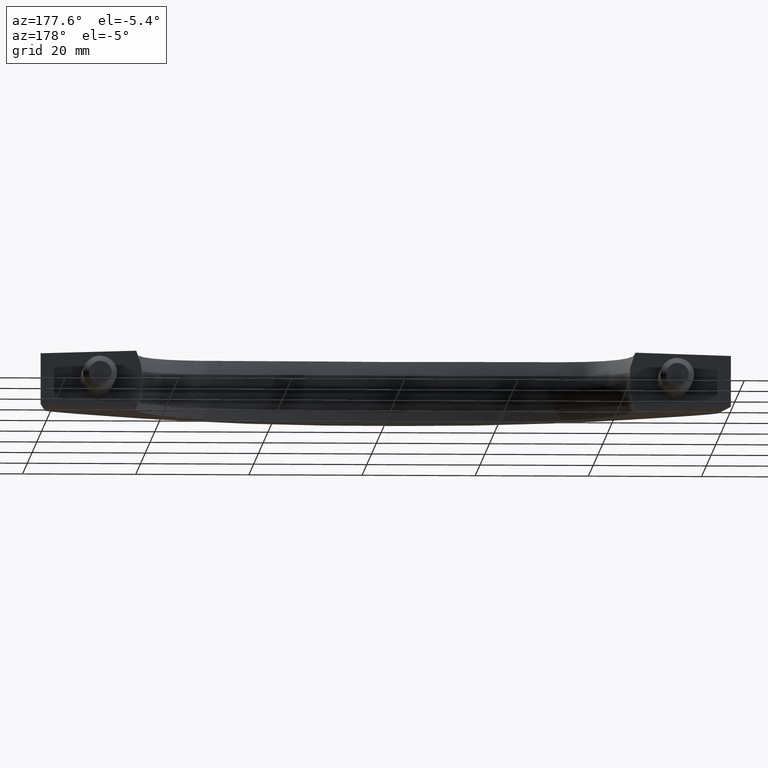
[diagram: clean part render]
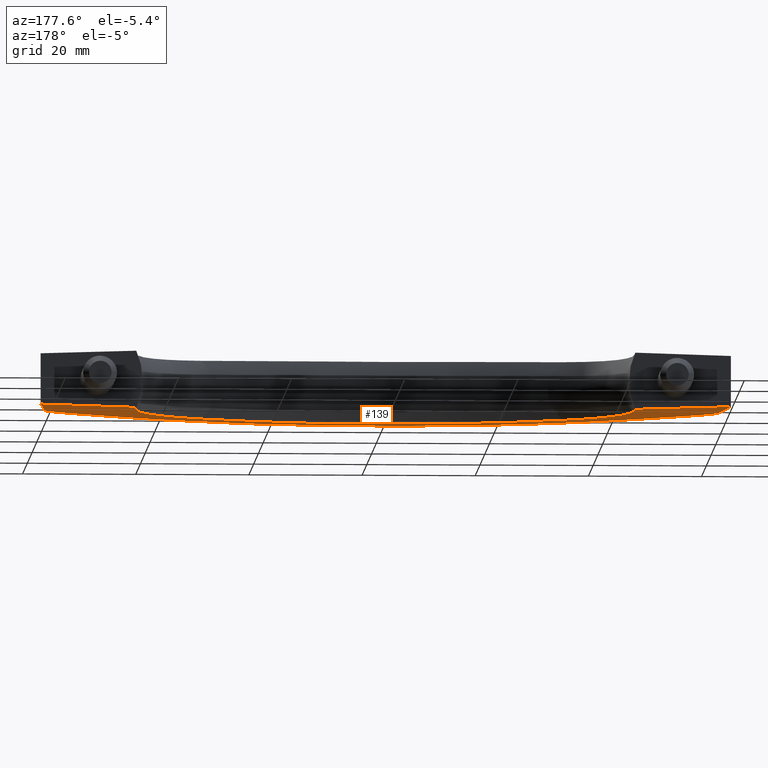
[diagram: same view with one face highlighted and labeled with its STEP entity id]
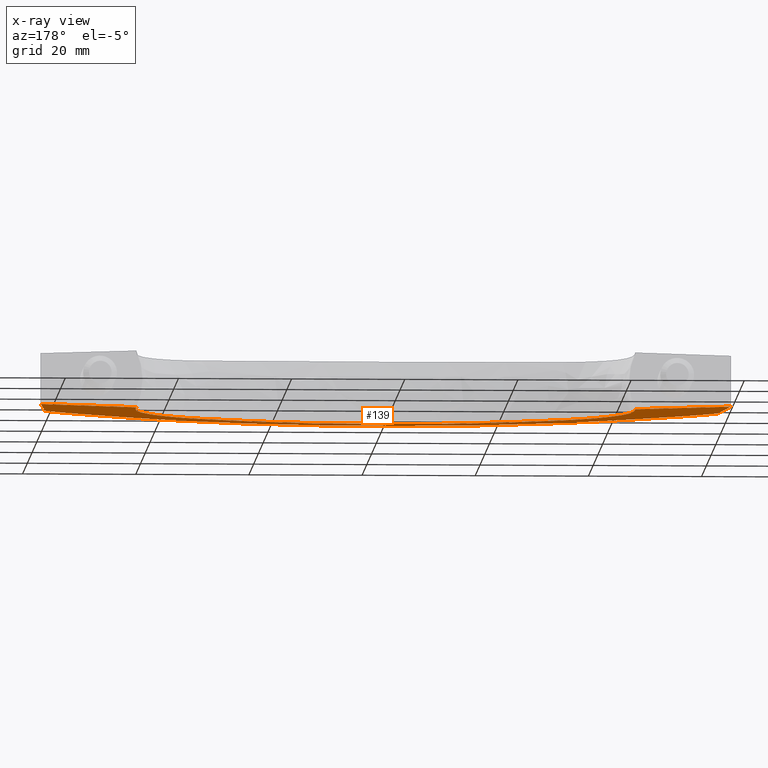
[diagram: x-ray of the same camera — body ghosted, the highlighted face saturated]
A machine part, auxiliary view. The second image highlights one B-rep face of the part: STEP entity #139.
The next image is the same camera in x-ray: the body ghosted, the highlighted face saturated — about 0% of this face is hidden behind the body in this view.
In plain terms, the highlighted face is a freeform B-spline surface patch.
Its self-contained STEP definition (entity closure, byte-faithful):
#139=ADVANCED_FACE('',(#328),#327,.F.);
#327=( BOUNDED_SURFACE() B_SPLINE_SURFACE( 3,3,((#1152,#1153,#1154,#1155,#1156,#1157,#1158,#1159,#1160,#1161,#1162,#1163,#1164,#1165,#1166),(#1167,#1168,#1169,#1170,#1171,#1172,#1173,#1174,#1175,#1176,#1177,#1178,#1179,#1180,#1181),(#1182,#1183,#1184,#1185,#1186,#1187,#1188,#1189,#1190,#1191,#1192,#1193,#1194,#1195,#1196),(#1197,#1198,#1199,#1200,#1201,#1202,#1203,#1204,#1205,#1206,#1207,#1208,#1209,#1210,#1211),(#1212,#1213,#1214,#1215,#1216,#1217,#1218,#1219,#1220,#1221,#1222,#1223,#1224,#1225,#1226),(#1227,#1228,#1229,#1230,#1231,#1232,#1233,#1234,#1235,#1236,#1237,#1238,#1239,#1240,#1241),(#1242,#1243,#1244,#1245,#1246,#1247,#1248,#1249,#1250,#1251,#1252,#1253,#1254,#1255,#1256)), .UNSPECIFIED.,.F.,.F.,.F.) B_SPLINE_SURFACE_WITH_KNOTS((4,3,4),(4,1,1,1,1,1,1,1,1,1,1,1,4),(0.00000000000E+00,3.55420467861E+01,7.12607061787E+01),(0.00000000000E+00,2.51424153408E+01,4.63131256070E+01,6.74838315494E+01,8.86545372176E+01,1.09825242588E+02,1.30995947939E+02,1.52166653289E+02,1.73337358660E+02,1.94508064328E+02,2.15678770270E+02,2.36849480537E+02,2.61239943865E+02), .UNSPECIFIED. ) GEOMETRIC_REPRESENTATION_ITEM() RATIONAL_B_SPLINE_SURFACE(((1.00000000000E+00,1.00000000000E+00,1.00000000000E+00,1.00000000000E+00,1.00000000000E+00,1.00000000000E+00,1.00000000000E+00,1.00000000000E+00,1.00000000000E+00,1.00000000000E+00,1.00000000000E+00,1.00000000000E+00,1.00000000000E+00,1.00000000000E+00,1.00000000000E+00),(1.00000000000E+00,1.00000000000E+00,1.00000000000E+00,1.00000000000E+00,1.00000000000E+00,1.00000000000E+00,1.00000000000E+00,1.00000000000E+00,1.00000000000E+00,1.00000000000E+00,1.00000000000E+00,1.00000000000E+00,1.00000000000E+00,1.00000000000E+00,1.00000000000E+00),(1.00000000000E+00,1.00000000000E+00,1.00000000000E+00,1.00000000000E+00,1.00000000000E+00,1.00000000000E+00,1.00000000000E+00,1.00000000000E+00,1.00000000000E+00,1.00000000000E+00,1.00000000000E+00,1.00000000000E+00,1.00000000000E+00,1.00000000000E+00,1.00000000000E+00),(1.00000000000E+00,1.00000000000E+00,1.00000000000E+00,1.00000000000E+00,1.00000000000E+00,1.00000000000E+00,1.00000000000E+00,1.00000000000E+00,1.00000000000E+00,1.00000000000E+00,1.00000000000E+00,1.00000000000E+00,1.00000000000E+00,1.00000000000E+00,1.00000000000E+00),(1.00000000000E+00,1.00000000000E+00,1.00000000000E+00,1.00000000000E+00,1.00000000000E+00,1.00000000000E+00,1.00000000000E+00,1.00000000000E+00,1.00000000000E+00,1.00000000000E+00,1.00000000000E+00,1.00000000000E+00,1.00000000000E+00,1.00000000000E+00,1.00000000000E+00),(1.00000000000E+00,1.00000000000E+00,1.00000000000E+00,1.00000000000E+00,1.00000000000E+00,1.00000000000E+00,1.00000000000E+00,1.00000000000E+00,1.00000000000E+00,1.00000000000E+00,1.00000000000E+00,1.00000000000E+00,1.00000000000E+00,1.00000000000E+00,1.00000000000E+00),(1.00000000000E+00,1.00000000000E+00,1.00000000000E+00,1.00000000000E+00,1.00000000000E+00,1.00000000000E+00,1.00000000000E+00,1.00000000000E+00,1.00000000000E+00,1.00000000000E+00,1.00000000000E+00,1.00000000000E+00,1.00000000000E+00,1.00000000000E+00,1.00000000000E+00))) REPRESENTATION_ITEM('') SURFACE() );
#328=FACE_OUTER_BOUND('',#1257,.T.);
#1152=CARTESIAN_POINT('',(5.95003000000E+01,-4.00000000000E+00,1.78820000000E+01));
#1153=CARTESIAN_POINT('',(5.65625769965E+01,-4.06855277191E+00,2.54700207546E+01));
#1154=CARTESIAN_POINT('',(5.11511981525E+01,-4.19482914963E+00,3.94473953843E+01));
#1155=CARTESIAN_POINT('',(3.98696410437E+01,-4.79709213560E+00,3.45701860510E+01));
#1156=CARTESIAN_POINT('',(3.00351092986E+01,-5.24923304528E+00,3.58002356217E+01));
#1157=CARTESIAN_POINT('',(1.99908227789E+01,-5.40597564257E+00,3.54702016607E+01));
#1158=CARTESIAN_POINT('',(1.00024999610E+01,-5.52686437916E+00,3.55602880352E+01));
#1159=CARTESIAN_POINT('',(7.74457295530E-05,-5.48656684013E+00,3.55299764922E+01));
#1160=CARTESIAN_POINT('',(-1.00019097439E+01,-5.52686826033E+00,3.55611362902E+01));
#1161=CARTESIAN_POINT('',(-1.99915385387E+01,-5.40596011789E+00,3.54668086407E+01));
#1162=CARTESIAN_POINT('',(-3.00310364764E+01,-5.24929126283E+00,3.58129594469E+01));
#1163=CARTESIAN_POINT('',(-3.98834165738E+01,-4.79687479006E+00,3.45226837655E+01));
#1164=CARTESIAN_POINT('',(-5.09692853106E+01,-4.20240328990E+00,3.95817310952E+01));
#1165=CARTESIAN_POINT('',(-5.65255437478E+01,-4.07057318795E+00,2.54481774162E+01));
#1166=CARTESIAN_POINT('',(-5.95000000000E+01,-4.00000000000E+00,1.78820000000E+01));
#1167=CARTESIAN_POINT('',(6.00003000000E+01,-4.16666666667E+00,1.19213333333E+01));
#1168=CARTESIAN_POINT('',(5.68477191492E+01,-4.23918204805E+00,1.69800138364E+01));
#1169=CARTESIAN_POINT('',(5.10405653435E+01,-4.37275767795E+00,2.62982635895E+01));
#1170=CARTESIAN_POINT('',(3.98971064990E+01,-4.94293975703E+00,2.30467907006E+01));
#1171=CARTESIAN_POINT('',(3.00277526048E+01,-5.21013987550E+00,2.38668237478E+01));
#1172=CARTESIAN_POINT('',(1.99927841016E+01,-5.41650071468E+00,2.36468011071E+01));
#1173=CARTESIAN_POINT('',(1.00020113637E+01,-5.52385725971E+00,2.37068586901E+01));
#1174=CARTESIAN_POINT('',(7.05121408400E-05,-5.48807024591E+00,2.36866509948E+01));
#1175=CARTESIAN_POINT('',(-1.00013934123E+01,-5.52386175668E+00,2.37074241935E+01));
#1176=CARTESIAN_POINT('',(-1.99935969317E+01,-5.41648272678E+00,2.36445390938E+01));
#1177=CARTESIAN_POINT('',(-3.00233192360E+01,-5.21020733013E+00,2.38753062979E+01));
#1178=CARTESIAN_POINT('',(-3.99122271455E+01,-4.94268792637E+00,2.30151225103E+01));
#1179=CARTESIAN_POINT('',(-5.08548486929E+01,-4.38011132664E+00,2.63878207302E+01));
#1180=CARTESIAN_POINT('',(-5.68113043897E+01,-4.24108971637E+00,1.69654516108E+01));
#1181=CARTESIAN_POINT('',(-6.00000000000E+01,-4.16666666667E+00,1.19213333333E+01));
#1182=CARTESIAN_POINT('',(6.05003000000E+01,-4.33333333333E+00,5.96066666667E+00));
#1183=CARTESIAN_POINT('',(5.71328613019E+01,-4.40981132419E+00,8.49000691818E+00));
#1184=CARTESIAN_POINT('',(5.09299325345E+01,-4.55068620628E+00,1.31491317948E+01));
#1185=CARTESIAN_POINT('',(3.99245719543E+01,-5.08878737846E+00,1.15233953503E+01));
#1186=CARTESIAN_POINT('',(3.00203959109E+01,-5.17104670571E+00,1.19334118739E+01));
#1187=CARTESIAN_POINT('',(1.99947454244E+01,-5.42702578679E+00,1.18234005536E+01));
#1188=CARTESIAN_POINT('',(1.00015227664E+01,-5.52085014025E+00,1.18534293451E+01));
#1189=CARTESIAN_POINT('',(6.35785521250E-05,-5.48957365168E+00,1.18433254974E+01));
#1190=CARTESIAN_POINT('',(-1.00008770807E+01,-5.52085525304E+00,1.18537120967E+01));
#1191=CARTESIAN_POINT('',(-1.99956553246E+01,-5.42700533567E+00,1.18222695469E+01));
#1192=CARTESIAN_POINT('',(-3.00156019955E+01,-5.17112339743E+00,1.19376531490E+01));
#1193=CARTESIAN_POINT('',(-3.99410377172E+01,-5.08850106267E+00,1.15075612552E+01));
#1194=CARTESIAN_POINT('',(-5.07404120751E+01,-4.55781936337E+00,1.31939103651E+01));
#1195=CARTESIAN_POINT('',(-5.70970650316E+01,-4.41160624479E+00,8.48272580542E+00));
#1196=CARTESIAN_POINT('',(-6.05000000000E+01,-4.33333333333E+00,5.96066666667E+00));
#1197=CARTESIAN_POINT('',(6.10003000000E+01,-4.50000000000E+00,-1.33226800000E-12));
#1198=CARTESIAN_POINT('',(5.74180034546E+01,-4.58044060032E+00,-7.63917700000E-13));
#1199=CARTESIAN_POINT('',(5.08192997255E+01,-4.72861473460E+00,2.83000900000E-13));
#1200=CARTESIAN_POINT('',(3.99520374096E+01,-5.23463499989E+00,-1.03208900000E-13));
#1201=CARTESIAN_POINT('',(3.00130392171E+01,-5.13195353593E+00,2.76645500000E-14));
#1202=CARTESIAN_POINT('',(1.99967067471E+01,-5.43755085890E+00,-7.44937300000E-15));
#1203=CARTESIAN_POINT('',(1.00010341692E+01,-5.51784302080E+00,2.13293900000E-15));
#1204=CARTESIAN_POINT('',(5.66449634110E-05,-5.49107705746E+00,-1.08238400000E-15));
#1205=CARTESIAN_POINT('',(-1.00003607490E+01,-5.51784874939E+00,2.19659700000E-15));
#1206=CARTESIAN_POINT('',(-1.99977137176E+01,-5.43752794455E+00,-7.70400300000E-15));
#1207=CARTESIAN_POINT('',(-3.00078847551E+01,-5.13203946473E+00,2.86194200000E-14));
#1208=CARTESIAN_POINT('',(-3.99698482889E+01,-5.23431419898E+00,-1.06773700000E-13));
#1209=CARTESIAN_POINT('',(-5.06259754574E+01,-4.73552740011E+00,2.92857100000E-13));
#1210=CARTESIAN_POINT('',(-5.73828256735E+01,-4.58212277322E+00,-7.65625500000E-13));
#1211=CARTESIAN_POINT('',(-6.10000000000E+01,-4.50000000000E+00,-1.33226800000E-12));
#1212=CARTESIAN_POINT('',(6.15027845587E+01,-4.66749485292E+00,-5.99028591968E+00));
#1213=CARTESIAN_POINT('',(5.77045625122E+01,-4.75191775338E+00,-8.53219476009E+00));
#1214=CARTESIAN_POINT('',(5.07081171691E+01,-4.90742741068E+00,-1.32144713756E+01));
#1215=CARTESIAN_POINT('',(3.99796393440E+01,-5.38120735528E+00,-1.15806564557E+01));
#1216=CARTESIAN_POINT('',(3.00056459670E+01,-5.09266610759E+00,-1.19927103996E+01));
#1217=CARTESIAN_POINT('',(1.99986778159E+01,-5.44812823133E+00,-1.18821524201E+01));
#1218=CARTESIAN_POINT('',(1.00005431440E+01,-5.51482095862E+00,-1.19123304282E+01));
#1219=CARTESIAN_POINT('',(4.96769208800E-05,-5.49258793383E+00,-1.19021763733E+01));
#1220=CARTESIAN_POINT('',(-9.99984185167E+00,-5.51482730607E+00,-1.19126145849E+01));
#1221=CARTESIAN_POINT('',(-1.99997823390E+01,-5.44810284152E+00,-1.18810157933E+01));
#1222=CARTESIAN_POINT('',(-3.00001291667E+01,-5.09276131938E+00,-1.19969727501E+01));
#1223=CARTESIAN_POINT('',(-3.99988020237E+01,-5.38085189789E+00,-1.15647436791E+01));
#1224=CARTESIAN_POINT('',(-5.05109701906E+01,-4.91411848896E+00,-1.32594724559E+01));
#1225=CARTESIAN_POINT('',(-5.76700062936E+01,-4.75348661831E+00,-8.52487746662E+00));
#1226=CARTESIAN_POINT('',(-6.15024845587E+01,-4.66749485292E+00,-5.99028591968E+00));
#1227=CARTESIAN_POINT('',(6.20052691175E+01,-4.83498970583E+00,-1.19805718394E+01));
#1228=CARTESIAN_POINT('',(5.79911215698E+01,-4.92339490644E+00,-1.70643895202E+01));
#1229=CARTESIAN_POINT('',(5.05969346127E+01,-5.08624008677E+00,-2.64289427512E+01));
#1230=CARTESIAN_POINT('',(4.00072412784E+01,-5.52777971068E+00,-2.31613129115E+01));
#1231=CARTESIAN_POINT('',(2.99982527169E+01,-5.05337867925E+00,-2.39854207992E+01));
#1232=CARTESIAN_POINT('',(2.00006488847E+01,-5.45870560376E+00,-2.37643048402E+01));
#1233=CARTESIAN_POINT('',(1.00000521188E+01,-5.51179889644E+00,-2.38246608564E+01));
#1234=CARTESIAN_POINT('',(4.27088783490E-05,-5.49409881020E+00,-2.38043527466E+01));
#1235=CARTESIAN_POINT('',(-9.99932295432E+00,-5.51180586276E+00,-2.38252291698E+01));
#1236=CARTESIAN_POINT('',(-2.00018509604E+01,-5.45867773848E+00,-2.37620315866E+01));
#1237=CARTESIAN_POINT('',(-2.99923735784E+01,-5.05348317403E+00,-2.39939455001E+01));
#1238=CARTESIAN_POINT('',(-4.00277557585E+01,-5.52738959680E+00,-2.31294873582E+01));
#1239=CARTESIAN_POINT('',(-5.03959649239E+01,-5.09270957781E+00,-2.65189449118E+01));
#1240=CARTESIAN_POINT('',(-5.79571869137E+01,-4.92485046339E+00,-1.70497549332E+01));
#1241=CARTESIAN_POINT('',(-6.20049691175E+01,-4.83498970583E+00,-1.19805718394E+01));
#1242=CARTESIAN_POINT('',(6.25077536762E+01,-5.00248455875E+00,-1.79708577590E+01));
#1243=CARTESIAN_POINT('',(5.82776806273E+01,-5.09487205950E+00,-2.55965842803E+01));
#1244=CARTESIAN_POINT('',(5.04857520562E+01,-5.26505276285E+00,-3.96434141268E+01));
#1245=CARTESIAN_POINT('',(4.00348432127E+01,-5.67435206608E+00,-3.47419693672E+01));
#1246=CARTESIAN_POINT('',(2.99908594668E+01,-5.01409125091E+00,-3.59781311988E+01));
#1247=CARTESIAN_POINT('',(2.00026199535E+01,-5.46928297618E+00,-3.56464572603E+01));
#1248=CARTESIAN_POINT('',(9.99956109362E+00,-5.50877683426E+00,-3.57369912846E+01));
#1249=CARTESIAN_POINT('',(3.57408358181E-05,-5.49560968658E+00,-3.57065291200E+01));
#1250=CARTESIAN_POINT('',(-9.99880405696E+00,-5.50878441944E+00,-3.57378437547E+01));
#1251=CARTESIAN_POINT('',(-2.00039195818E+01,-5.46925263545E+00,-3.56430473800E+01));
#1252=CARTESIAN_POINT('',(-2.99846179901E+01,-5.01420502868E+00,-3.59909182502E+01));
#1253=CARTESIAN_POINT('',(-4.00567094933E+01,-5.67392729572E+00,-3.46942310373E+01));
#1254=CARTESIAN_POINT('',(-5.02809596571E+01,-5.27130066666E+00,-3.97784173677E+01));
#1255=CARTESIAN_POINT('',(-5.82443675338E+01,-5.09621430848E+00,-2.55746323999E+01));
#1256=CARTESIAN_POINT('',(-6.25074536762E+01,-5.00248455875E+00,-1.79708577590E+01));
#1257=EDGE_LOOP('',(#1474,#1475,#1476,#1477,#1478,#1479,#1480,#1481,#1482,#1483));
#1474=ORIENTED_EDGE('',*,*,#1558,.F.);
#1475=ORIENTED_EDGE('',*,*,#1566,.T.);
#1476=ORIENTED_EDGE('',*,*,#1568,.T.);
#1477=ORIENTED_EDGE('',*,*,#1562,.T.);
#1478=ORIENTED_EDGE('',*,*,#1560,.F.);
#1479=ORIENTED_EDGE('',*,*,#1543,.F.);
#1480=ORIENTED_EDGE('',*,*,#1548,.F.);
#1481=ORIENTED_EDGE('',*,*,#1572,.F.);
#1482=ORIENTED_EDGE('',*,*,#1574,.T.);
#1483=ORIENTED_EDGE('',*,*,#1534,.F.);
#1534=EDGE_CURVE('',#1709,#1716,#1717,.T.);
#1543=EDGE_CURVE('',#1772,#1757,#1779,.T.);
#1548=EDGE_CURVE('',#1806,#1772,#1814,.T.);
#1558=EDGE_CURVE('',#1875,#1709,#1882,.T.);
#1560=EDGE_CURVE('',#1757,#1895,#1896,.T.);
#1562=EDGE_CURVE('',#1908,#1895,#1909,.T.);
#1566=EDGE_CURVE('',#1875,#1929,#1936,.T.);
#1568=EDGE_CURVE('',#1929,#1908,#1948,.T.);
#1572=EDGE_CURVE('',#1967,#1806,#1974,.T.);
#1574=EDGE_CURVE('',#1967,#1716,#1986,.T.);
#1709=VERTEX_POINT('',#2100);
#1716=VERTEX_POINT('',#2105);
#1717=(BOUNDED_CURVE() B_SPLINE_CURVE(3,(#2106,#2107,#2108,#2109,#2110),.UNSPECIFIED.,.F.,.F.) B_SPLINE_CURVE_WITH_KNOTS((4,1,4),(8.58626061439E-01,9.06635781007E-01,1.00000000000E+00),.UNSPECIFIED.) CURVE() GEOMETRIC_REPRESENTATION_ITEM() RATIONAL_B_SPLINE_CURVE((1.00000000000E+00,1.00000000000E+00,1.00000000000E+00,1.00000000000E+00,1.00000000000E+00)) REPRESENTATION_ITEM('') );
#1757=VERTEX_POINT('',#2135);
#1772=VERTEX_POINT('',#2147);
#1779=(BOUNDED_CURVE() B_SPLINE_CURVE(3,(#2151,#2152,#2153,#2154,#2155),.UNSPECIFIED.,.F.,.F.) B_SPLINE_CURVE_WITH_KNOTS((4,1,4),(0.00000000000E+00,9.62426150027E-02,1.44379920066E-01),.UNSPECIFIED.) CURVE() GEOMETRIC_REPRESENTATION_ITEM() RATIONAL_B_SPLINE_CURVE((1.00000000000E+00,1.00000000000E+00,1.00000000000E+00,1.00000000000E+00,1.00000000000E+00)) REPRESENTATION_ITEM('') );
#1806=VERTEX_POINT('',#2171);
#1814=LINE('',#2176,#2177);
#1875=VERTEX_POINT('',#2217);
#1882=(BOUNDED_CURVE() B_SPLINE_CURVE(3,(#2232,#2233,#2234,#2235),.UNSPECIFIED.,.F.,.F.) B_SPLINE_CURVE_WITH_KNOTS((4,4),(5.95697697824E-03,9.82039334998E-03),.UNSPECIFIED.) CURVE() GEOMETRIC_REPRESENTATION_ITEM() RATIONAL_B_SPLINE_CURVE((1.00000000000E+00,1.00000000000E+00,1.00000000000E+00,1.00000000000E+00)) REPRESENTATION_ITEM('') );
#1895=VERTEX_POINT('',#2241);
#1896=(BOUNDED_CURVE() B_SPLINE_CURVE(3,(#2242,#2243,#2244,#2245),.UNSPECIFIED.,.F.,.F.) B_SPLINE_CURVE_WITH_KNOTS((4,4),(0.00000000000E+00,3.60424723020E-03),.UNSPECIFIED.) CURVE() GEOMETRIC_REPRESENTATION_ITEM() RATIONAL_B_SPLINE_CURVE((1.00000000000E+00,1.00000000000E+00,1.00000000000E+00,1.00000000000E+00)) REPRESENTATION_ITEM('') );
#1908=VERTEX_POINT('',#2260);
#1909=(BOUNDED_CURVE() B_SPLINE_CURVE(3,(#2261,#2262,#2263,#2264,#2265,#2266,#2267,#2268,#2269,#2270,#2271,#2272,#2273,#2274,#2275,#2276,#2277,#2278,#2279,#2280,#2281,#2282,#2283,#2284,#2285,#2286,#2287,#2288,#2289,#2290,#2291,#2292),.UNSPECIFIED.,.F.,.F.) B_SPLINE_CURVE_WITH_KNOTS((4,2,2,2,2,2,2,2,2,2,2,2,2,2,2,4),(1.06117986830E-05,1.25000000000E-01,1.87500000000E-01,2.50000000000E-01,2.81250000000E-01,2.96875000000E-01,3.12500000000E-01,3.75000000000E-01,5.00000000000E-01,5.62500000000E-01,6.25000000000E-01,7.50000000000E-01,7.81250000000E-01,8.12500000000E-01,8.75000000000E-01,9.99994305616E-01),.UNSPECIFIED.) CURVE() GEOMETRIC_REPRESENTATION_ITEM() RATIONAL_B_SPLINE_CURVE((1.00000000000E+00,1.00000000000E+00,1.00000000000E+00,1.00000000000E+00,1.00000000000E+00,1.00000000000E+00,1.00000000000E+00,1.00000000000E+00,1.00000000000E+00,1.00000000000E+00,1.00000000000E+00,1.00000000000E+00,1.00000000000E+00,1.00000000000E+00,1.00000000000E+00,1.00000000000E+00,1.00000000000E+00,1.00000000000E+00,1.00000000000E+00,1.00000000000E+00,1.00000000000E+00,1.00000000000E+00,1.00000000000E+00,1.00000000000E+00,1.00000000000E+00,1.00000000000E+00,1.00000000000E+00,1.00000000000E+00,1.00000000000E+00,1.00000000000E+00,1.00000000000E+00,1.00000000000E+00)) REPRESENTATION_ITEM('') );
#1929=VERTEX_POINT('',#2341);
#1936=(BOUNDED_CURVE() B_SPLINE_CURVE(3,(#2353,#2354,#2355,#2356,#2357,#2358,#2359,#2360,#2361,#2362,#2363,#2364,#2365,#2366,#2367,#2368,#2369,#2370,#2371,#2372,#2373,#2374,#2375,#2376,#2377,#2378,#2379,#2380,#2381,#2382,#2383,#2384,#2385,#2386,#2387,#2388,#2389),.UNSPECIFIED.,.F.,.F.) B_SPLINE_CURVE_WITH_KNOTS((4,2,2,2,2,2,2,2,2,2,2,2,2,2,2,1,2,2,4),(3.01852788200E-05,1.25000000000E-01,1.87500000000E-01,2.50000000000E-01,2.81250000000E-01,2.96875000000E-01,3.12500000000E-01,3.75000000000E-01,5.00000000000E-01,5.15625000000E-01,5.31250000000E-01,5.62500000000E-01,6.25000000000E-01,7.50000000000E-01,7.65625000000E-01,7.81250000000E-01,8.12500000000E-01,8.75000000000E-01,9.99979244572E-01),.UNSPECIFIED.) CURVE() GEOMETRIC_REPRESENTATION_ITEM() RATIONAL_B_SPLINE_CURVE((1.00000000000E+00,1.00000000000E+00,1.00000000000E+00,1.00000000000E+00,1.00000000000E+00,1.00000000000E+00,1.00000000000E+00,1.00000000000E+00,1.00000000000E+00,1.00000000000E+00,1.00000000000E+00,1.00000000000E+00,1.00000000000E+00,1.00000000000E+00,1.00000000000E+00,1.00000000000E+00,1.00000000000E+00,1.00000000000E+00,1.00000000000E+00,1.00000000000E+00,1.00000000000E+00,1.00000000000E+00,1.00000000000E+00,1.00000000000E+00,1.00000000000E+00,1.00000000000E+00,1.00000000000E+00,1.00000000000E+00,1.00000000000E+00,1.00000000000E+00,1.00000000000E+00,1.00000000000E+00,1.00000000000E+00,1.00000000000E+00,1.00000000000E+00,1.00000000000E+00,1.00000000000E+00)) REPRESENTATION_ITEM('') );
#1948=(BOUNDED_CURVE() B_SPLINE_CURVE(3,(#2427,#2428,#2429,#2430,#2431,#2432,#2433,#2434,#2435,#2436,#2437,#2438,#2439,#2440,#2441,#2442,#2443,#2444,#2445,#2446,#2447,#2448,#2449,#2450,#2451,#2452,#2453,#2454,#2455,#2456,#2457,#2458,#2459,#2460,#2461,#2462,#2463,#2464,#2465,#2466,#2467,#2468,#2469,#2470,#2471,#2472),.UNSPECIFIED.,.F.,.F.) B_SPLINE_CURVE_WITH_KNOTS((4,2,2,2,2,2,2,2,2,2,2,2,2,2,2,2,2,2,2,2,2,2,4),(6.96180921600E-06,3.12500000000E-02,6.25000000000E-02,9.37500000000E-02,1.25000000000E-01,1.87500000000E-01,2.50000000000E-01,2.81250000000E-01,3.12500000000E-01,3.75000000000E-01,4.37500000000E-01,4.68750000000E-01,5.00000000000E-01,6.25000000000E-01,6.56250000000E-01,6.87500000000E-01,7.50000000000E-01,8.12500000000E-01,8.43750000000E-01,8.75000000000E-01,9.37500000000E-01,9.68750000000E-01,9.99996374207E-01),.UNSPECIFIED.) CURVE() GEOMETRIC_REPRESENTATION_ITEM() RATIONAL_B_SPLINE_CURVE((1.00000000000E+00,1.00000000000E+00,1.00000000000E+00,1.00000000000E+00,1.00000000000E+00,1.00000000000E+00,1.00000000000E+00,1.00000000000E+00,1.00000000000E+00,1.00000000000E+00,1.00000000000E+00,1.00000000000E+00,1.00000000000E+00,1.00000000000E+00,1.00000000000E+00,1.00000000000E+00,1.00000000000E+00,1.00000000000E+00,1.00000000000E+00,1.00000000000E+00,1.00000000000E+00,1.00000000000E+00,1.00000000000E+00,1.00000000000E+00,1.00000000000E+00,1.00000000000E+00,1.00000000000E+00,1.00000000000E+00,1.00000000000E+00,1.00000000000E+00,1.00000000000E+00,1.00000000000E+00,1.00000000000E+00,1.00000000000E+00,1.00000000000E+00,1.00000000000E+00,1.00000000000E+00,1.00000000000E+00,1.00000000000E+00,1.00000000000E+00,1.00000000000E+00,1.00000000000E+00,1.00000000000E+00,1.00000000000E+00,1.00000000000E+00,1.00000000000E+00)) REPRESENTATION_ITEM('') );
#1967=VERTEX_POINT('',#2609);
#1974=(BOUNDED_CURVE() B_SPLINE_CURVE(3,(#2613,#2614,#2615,#2616,#2617,#2618,#2619,#2620,#2621,#2622,#2623,#2624,#2625,#2626,#2627,#2628,#2629,#2630,#2631,#2632,#2633,#2634,#2635,#2636,#2637,#2638,#2639,#2640,#2641,#2642,#2643,#2644,#2645,#2646,#2647,#2648,#2649,#2650,#2651,#2652,#2653,#2654,#2655,#2656,#2657,#2658,#2659,#2660,#2661,#2662,#2663,#2664,#2665,#2666,#2667,#2668,#2669,#2670,#2671,#2672,#2673,#2674,#2675,#2676,#2677,#2678,#2679,#2680,#2681,#2682,#2683,#2684,#2685,#2686,#2687,#2688,#2689,#2690,#2691,#2692,#2693,#2694,#2695,#2696,#2697,#2698,#2699,#2700),.UNSPECIFIED.,.F.,.F.) B_SPLINE_CURVE_WITH_KNOTS((4,2,2,2,2,2,2,2,2,2,2,2,2,2,2,2,2,2,2,2,2,2,2,2,2,2,2,2,2,2,2,2,2,2,2,2,2,2,2,2,2,2,2,4),(0.00000000000E+00,7.81250000000E-03,1.56250000000E-02,3.12500000000E-02,4.68750000000E-02,6.25000000000E-02,7.81250000000E-02,9.37500000000E-02,1.25000000000E-01,1.56250000000E-01,1.87500000000E-01,2.18750000000E-01,2.34375000000E-01,2.50000000000E-01,2.81250000000E-01,3.12500000000E-01,3.43750000000E-01,3.75000000000E-01,3.90625000000E-01,4.06250000000E-01,4.37500000000E-01,5.00000000000E-01,5.15625000000E-01,5.31250000000E-01,5.62500000000E-01,5.93750000000E-01,6.25000000000E-01,6.56250000000E-01,6.71875000000E-01,6.87500000000E-01,7.18750000000E-01,7.50000000000E-01,7.81250000000E-01,8.12500000000E-01,8.43750000000E-01,8.75000000000E-01,9.06250000000E-01,9.21875000000E-01,9.37500000000E-01,9.53125000000E-01,9.68750000000E-01,9.84375000000E-01,9.92187500000E-01,1.00000000000E+00),.UNSPECIFIED.) CURVE() GEOMETRIC_REPRESENTATION_ITEM() RATIONAL_B_SPLINE_CURVE((1.00000000000E+00,1.00000000000E+00,1.00000000000E+00,1.00000000000E+00,1.00000000000E+00,1.00000000000E+00,1.00000000000E+00,1.00000000000E+00,1.00000000000E+00,1.00000000000E+00,1.00000000000E+00,1.00000000000E+00,1.00000000000E+00,1.00000000000E+00,1.00000000000E+00,1.00000000000E+00,1.00000000000E+00,1.00000000000E+00,1.00000000000E+00,1.00000000000E+00,1.00000000000E+00,1.00000000000E+00,1.00000000000E+00,1.00000000000E+00,1.00000000000E+00,1.00000000000E+00,1.00000000000E+00,1.00000000000E+00,1.00000000000E+00,1.00000000000E+00,1.00000000000E+00,1.00000000000E+00,1.00000000000E+00,1.00000000000E+00,1.00000000000E+00,1.00000000000E+00,1.00000000000E+00,1.00000000000E+00,1.00000000000E+00,1.00000000000E+00,1.00000000000E+00,1.00000000000E+00,1.00000000000E+00,1.00000000000E+00,1.00000000000E+00,1.00000000000E+00,1.00000000000E+00,1.00000000000E+00,1.00000000000E+00,1.00000000000E+00,1.00000000000E+00,1.00000000000E+00,1.00000000000E+00,1.00000000000E+00,1.00000000000E+00,1.00000000000E+00,1.00000000000E+00,1.00000000000E+00,1.00000000000E+00,1.00000000000E+00,1.00000000000E+00,1.00000000000E+00,1.00000000000E+00,1.00000000000E+00,1.00000000000E+00,1.00000000000E+00,1.00000000000E+00,1.00000000000E+00,1.00000000000E+00,1.00000000000E+00,1.00000000000E+00,1.00000000000E+00,1.00000000000E+00,1.00000000000E+00,1.00000000000E+00,1.00000000000E+00,1.00000000000E+00,1.00000000000E+00,1.00000000000E+00,1.00000000000E+00,1.00000000000E+00,1.00000000000E+00,1.00000000000E+00,1.00000000000E+00,1.00000000000E+00,1.00000000000E+00,1.00000000000E+00,1.00000000000E+00)) REPRESENTATION_ITEM('') );
#1986=LINE('',#2704,#2705);
#2100=CARTESIAN_POINT('',(-4.41021223006E+01,-5.02357060759E+00,4.66572800000E-14));
#2105=CARTESIAN_POINT('',(-6.10000000000E+01,-4.50000000000E+00,-6.66133800000E-13));
#2106=CARTESIAN_POINT('',(-4.41021223006E+01,-5.02357060759E+00,4.66572800000E-14));
#2107=CARTESIAN_POINT('',(-4.60876513746E+01,-4.95379661569E+00,7.56054800000E-14));
#2108=CARTESIAN_POINT('',(-5.19056290930E+01,-4.70647469326E+00,9.23951600000E-14));
#2109=CARTESIAN_POINT('',(-5.73828256735E+01,-4.58212277322E+00,-7.65625500000E-13));
#2110=CARTESIAN_POINT('',(-6.10000000000E+01,-4.50000000000E+00,-6.66133800000E-13));
#2135=CARTESIAN_POINT('',(4.41025482976E+01,-5.02384393001E+00,0.00000000000E+00));
#2147=CARTESIAN_POINT('',(6.10003000000E+01,-4.50000000000E+00,-1.55431200000E-12));
#2151=CARTESIAN_POINT('',(6.10003000000E+01,-4.50000000000E+00,-1.55431200000E-12));
#2152=CARTESIAN_POINT('',(5.74180034546E+01,-4.58044060032E+00,-7.63917700000E-13));
#2153=CARTESIAN_POINT('',(5.20439631829E+01,-4.70111487174E+00,8.87016800000E-14));
#2154=CARTESIAN_POINT('',(4.60999607939E+01,-4.95384435328E+00,7.11433200000E-14));
#2155=CARTESIAN_POINT('',(4.41025482976E+01,-5.02384393001E+00,0.00000000000E+00));
#2171=CARTESIAN_POINT('',(5.95003111203E+01,-4.00000370677E+00,1.78818674312E+01));
#2176=CARTESIAN_POINT('',(5.95003111203E+01,-4.00000370677E+00,1.78818674312E+01));
#2177=VECTOR('',#2178,1.79516335123E+01);
#2178=DIRECTION('',(8.35572360963E-02,-2.78524120321E-02,-9.96113663916E-01));
#2217=CARTESIAN_POINT('',(-4.40801236221E+01,-4.97619864605E+00,3.86306332132E+00));
#2232=CARTESIAN_POINT('',(-4.40801236221E+01,-4.97619864605E+00,3.86306332132E+00));
#2233=CARTESIAN_POINT('',(-4.40874095642E+01,-4.99197726250E+00,2.57537513687E+00));
#2234=CARTESIAN_POINT('',(-4.40947422916E+01,-5.00776787398E+00,1.28768735982E+00));
#2235=CARTESIAN_POINT('',(-4.41021223006E+01,-5.02357060759E+00,4.66572800000E-14));
#2241=CARTESIAN_POINT('',(4.40828798636E+01,-4.97957964730E+00,3.60392178003E+00));
#2242=CARTESIAN_POINT('',(4.41025482976E+01,-5.02384393001E+00,0.00000000000E+00));
#2243=CARTESIAN_POINT('',(4.40959510913E+01,-5.00907868703E+00,1.20130689944E+00));
#2244=CARTESIAN_POINT('',(4.40893950812E+01,-4.99432396080E+00,2.40261416213E+00));
#2245=CARTESIAN_POINT('',(4.40828798636E+01,-4.97957964730E+00,3.60392178003E+00));
#2260=CARTESIAN_POINT('',(3.18020170094E+01,-5.16083454318E+00,1.99193198759E+01));
#2261=CARTESIAN_POINT('',(3.18020170094E+01,-5.16083454318E+00,1.99193198759E+01));
#2262=CARTESIAN_POINT('',(3.26915398517E+01,-5.14156330363E+00,1.96672965895E+01));
#2263=CARTESIAN_POINT('',(3.35520614795E+01,-5.12293646080E+00,1.93547235592E+01));
#2264=CARTESIAN_POINT('',(3.47987234801E+01,-5.09599430699E+00,1.87936574887E+01));
#2265=CARTESIAN_POINT('',(3.52069027755E+01,-5.08718545415E+00,1.85911782499E+01));
#2266=CARTESIAN_POINT('',(3.60078646441E+01,-5.06996516766E+00,1.81540714766E+01));
#2267=CARTESIAN_POINT('',(3.64006503592E+01,-5.06155400568E+00,1.79194504866E+01));
#2268=CARTESIAN_POINT('',(3.69775405328E+01,-5.04928556698E+00,1.75418594750E+01));
#2269=CARTESIAN_POINT('',(3.71677857395E+01,-5.04525422095E+00,1.74117120107E+01));
#2270=CARTESIAN_POINT('',(3.74499515099E+01,-5.03930122941E+00,1.72098044571E+01));
#2271=CARTESIAN_POINT('',(3.75434290906E+01,-5.03733351280E+00,1.71414134544E+01));
#2272=CARTESIAN_POINT('',(3.77283190001E+01,-5.03345098509E+00,1.70031062487E+01));
#2273=CARTESIAN_POINT('',(3.78198538488E+01,-5.03153358617E+00,1.69331033152E+01));
#2274=CARTESIAN_POINT('',(3.82729828667E+01,-5.02206687791E+00,1.65788469240E+01));
#2275=CARTESIAN_POINT('',(3.86209549542E+01,-5.01487828233E+00,1.62818809802E+01));
#2276=CARTESIAN_POINT('',(3.96211284408E+01,-4.99450607339E+00,1.53501605905E+01));
#2277=CARTESIAN_POINT('',(4.02296396162E+01,-4.98242240060E+00,1.46746343157E+01));
#2278=CARTESIAN_POINT('',(4.10522635485E+01,-4.96729165965E+00,1.35772101241E+01));
#2279=CARTESIAN_POINT('',(4.13114349958E+01,-4.96277321347E+00,1.31973672526E+01));
#2280=CARTESIAN_POINT('',(4.17989386128E+01,-4.95498121749E+00,1.24088936533E+01));
#2281=CARTESIAN_POINT('',(4.20233392378E+01,-4.95177083519E+00,1.20066424550E+01));
#2282=CARTESIAN_POINT('',(4.26419394880E+01,-4.94424947409E+00,1.07773146633E+01));
#2283=CARTESIAN_POINT('',(4.29818645545E+01,-4.94204973482E+00,9.92778068595E+00));
#2284=CARTESIAN_POINT('',(4.33231726877E+01,-4.94286981170E+00,8.83127866528E+00));
#2285=CARTESIAN_POINT('',(4.33872281546E+01,-4.94321215606E+00,8.61023817789E+00));
#2286=CARTESIAN_POINT('',(4.35069906553E+01,-4.94425488857E+00,8.16470345442E+00));
#2287=CARTESIAN_POINT('',(4.35627794847E+01,-4.94495704642E+00,7.93982022485E+00));
#2288=CARTESIAN_POINT('',(4.37168089435E+01,-4.94758665993E+00,7.26387590562E+00));
#2289=CARTESIAN_POINT('',(4.38019242787E+01,-4.95003488582E+00,6.81112265717E+00));
#2290=CARTESIAN_POINT('',(4.40070833245E+01,-4.95936958149E+00,5.44683932992E+00));
#2291=CARTESIAN_POINT('',(4.40773070102E+01,-4.96824173419E+00,4.52928790744E+00));
#2292=CARTESIAN_POINT('',(4.40828798636E+01,-4.97957964730E+00,3.60392178003E+00));
#2341=CARTESIAN_POINT('',(-3.21040640127E+01,-5.15428794884E+00,1.98327453923E+01));
#2353=CARTESIAN_POINT('',(-4.40801236221E+01,-4.97619864605E+00,3.86306332132E+00));
#2354=CARTESIAN_POINT('',(-4.40748465318E+01,-4.96512932021E+00,4.76693846402E+00));
#2355=CARTESIAN_POINT('',(-4.40094139389E+01,-4.95639843592E+00,5.66076322128E+00));
#2356=CARTESIAN_POINT('',(-4.38182784741E+01,-4.94706932812E+00,6.98607498668E+00));
#2357=CARTESIAN_POINT('',(-4.37389597924E+01,-4.94458908630E+00,7.42531107452E+00));
#2358=CARTESIAN_POINT('',(-4.35475056555E+01,-4.94095228348E+00,8.29830073489E+00));
#2359=CARTESIAN_POINT('',(-4.34353737440E+01,-4.93979577739E+00,8.73205490067E+00));
#2360=CARTESIAN_POINT('',(-4.32407059763E+01,-4.93911122174E+00,9.37826386324E+00));
#2361=CARTESIAN_POINT('',(-4.31713980502E+01,-4.93905816553E+00,9.59292862910E+00));
#2362=CARTESIAN_POINT('',(-4.30605067577E+01,-4.93924920380E+00,9.91376806651E+00));
#2363=CARTESIAN_POINT('',(-4.30224236330E+01,-4.93935802955E+00,1.00204089087E+01));
#2364=CARTESIAN_POINT('',(-4.29442616478E+01,-4.93966509133E+00,1.02323468022E+01));
#2365=CARTESIAN_POINT('',(-4.29041466126E+01,-4.93986337726E+00,1.03377495506E+01));
#2366=CARTESIAN_POINT('',(-4.26983796658E+01,-4.94107719156E+00,1.08619205152E+01));
#2367=CARTESIAN_POINT('',(-4.25171688314E+01,-4.94276042838E+00,1.12721693623E+01));
#2368=CARTESIAN_POINT('',(-4.19225072050E+01,-4.94988208376E+00,1.24749755320E+01));
#2369=CARTESIAN_POINT('',(-4.14581911807E+01,-4.95741210382E+00,1.32396820209E+01));
#2370=CARTESIAN_POINT('',(-4.08532710386E+01,-4.96864498456E+00,1.40547740311E+01));
#2371=CARTESIAN_POINT('',(-4.07849074509E+01,-4.96993101816E+00,1.41447100771E+01));
#2372=CARTESIAN_POINT('',(-4.06458521518E+01,-4.97257683439E+00,1.43233075900E+01));
#2373=CARTESIAN_POINT('',(-4.05751107903E+01,-4.97393761568E+00,1.44120244257E+01));
#2374=CARTESIAN_POINT('',(-4.03604933691E+01,-4.97810460500E+00,1.46748725616E+01));
#2375=CARTESIAN_POINT('',(-4.02138887845E+01,-4.98100185609E+00,1.48461459134E+01));
#2376=CARTESIAN_POINT('',(-3.97637232476E+01,-4.99000024132E+00,1.53483457455E+01));
#2377=CARTESIAN_POINT('',(-3.94498148717E+01,-4.99640012351E+00,1.56676570771E+01));
#2378=CARTESIAN_POINT('',(-3.84683840564E+01,-5.01670265160E+00,1.65810218139E+01));
#2379=CARTESIAN_POINT('',(-3.77613289771E+01,-5.03171014327E+00,1.71307000477E+01));
#2380=CARTESIAN_POINT('',(-3.69095811443E+01,-5.05002549710E+00,1.76858827226E+01));
#2381=CARTESIAN_POINT('',(-3.68140534919E+01,-5.05208267559E+00,1.77467512870E+01));
#2382=CARTESIAN_POINT('',(-3.66220449643E+01,-5.05622285095E+00,1.78663509331E+01));
#2383=CARTESIAN_POINT('',(-3.63326144277E+01,-5.06247155903E+00,1.80425474052E+01));
#2384=CARTESIAN_POINT('',(-3.60390206033E+01,-5.06883015429E+00,1.82093382460E+01));
#2385=CARTESIAN_POINT('',(-3.54464865047E+01,-5.08168035939E+00,1.85308417128E+01));
#2386=CARTESIAN_POINT('',(-3.50443458386E+01,-5.09042387258E+00,1.87290971849E+01));
#2387=CARTESIAN_POINT('',(-3.38179276644E+01,-5.11709175455E+00,1.92783254889E+01));
#2388=CARTESIAN_POINT('',(-3.29736773116E+01,-5.13543393384E+00,1.95841813557E+01));
#2389=CARTESIAN_POINT('',(-3.21040640127E+01,-5.15428794884E+00,1.98327453923E+01));
#2427=CARTESIAN_POINT('',(-3.21040640127E+01,-5.15428794884E+00,1.98327453923E+01));
#2428=CARTESIAN_POINT('',(-3.14559066817E+01,-5.16834127272E+00,2.00177901781E+01));
#2429=CARTESIAN_POINT('',(-3.08061742781E+01,-5.18237440103E+00,2.01974598486E+01));
#2430=CARTESIAN_POINT('',(-2.95034815213E+01,-5.21084561628E+00,2.05462833118E+01));
#2431=CARTESIAN_POINT('',(-2.88505252582E+01,-5.22531266339E+00,2.07154488200E+01));
#2432=CARTESIAN_POINT('',(-2.75414423399E+01,-5.25412272120E+00,2.10429669790E+01));
#2433=CARTESIAN_POINT('',(-2.68851374771E+01,-5.26846599192E+00,2.12013574856E+01));
#2434=CARTESIAN_POINT('',(-2.55705733624E+01,-5.29650204426E+00,2.15067661025E+01));
#2435=CARTESIAN_POINT('',(-2.49122335606E+01,-5.31019659524E+00,2.16538075843E+01));
#2436=CARTESIAN_POINT('',(-2.29339845690E+01,-5.34975670557E+00,2.20776901826E+01));
#2437=CARTESIAN_POINT('',(-2.16108412158E+01,-5.37404621931E+00,2.23372695567E+01));
#2438=CARTESIAN_POINT('',(-1.89557493984E+01,-5.41689328629E+00,2.28095626418E+01));
#2439=CARTESIAN_POINT('',(-1.76238089606E+01,-5.43552811372E+00,2.30223125759E+01));
#2440=CARTESIAN_POINT('',(-1.56192323063E+01,-5.45892636394E+00,2.33059767069E+01));
#2441=CARTESIAN_POINT('',(-1.49497531857E+01,-5.46596322287E+00,2.33946366647E+01));
#2442=CARTESIAN_POINT('',(-1.36101337630E+01,-5.47838442977E+00,2.35598446491E+01));
#2443=CARTESIAN_POINT('',(-1.29398491422E+01,-5.48377060772E+00,2.36364161302E+01));
#2444=CARTESIAN_POINT('',(-1.09275637632E+01,-5.49726861493E+00,2.38479542725E+01));
#2445=CARTESIAN_POINT('',(-9.58411844374E+00,-5.50241404146E+00,2.39645909746E+01));
#2446=CARTESIAN_POINT('',(-6.89343555807E+00,-5.50617909451E+00,2.41496911315E+01));
#2447=CARTESIAN_POINT('',(-5.54621513634E+00,-5.50519028736E+00,2.42183569821E+01));
#2448=CARTESIAN_POINT('',(-3.52271246524E+00,-5.50292723727E+00,2.42872502872E+01));
#2449=CARTESIAN_POINT('',(-2.84764940060E+00,-5.50204402532E+00,2.43045293169E+01));
#2450=CARTESIAN_POINT('',(-1.49809846260E+00,-5.50062004242E+00,2.43279823653E+01));
#2451=CARTESIAN_POINT('',(-8.23448496612E-01,-5.50007919845E+00,2.43341639486E+01));
#2452=CARTESIAN_POINT('',(2.54919211551E+00,-5.49972390541E+00,2.43381603373E+01));
#2453=CARTESIAN_POINT('',(5.24536486862E+00,-5.50760868137E+00,2.42556738810E+01));
#2454=CARTESIAN_POINT('',(8.61287568208E+00,-5.50393198964E+00,2.40329944506E+01));
#2455=CARTESIAN_POINT('',(9.28632324774E+00,-5.50252049072E+00,2.39824633783E+01));
#2456=CARTESIAN_POINT('',(1.06312500714E+01,-5.49777361471E+00,2.38692619394E+01));
#2457=CARTESIAN_POINT('',(1.13029299184E+01,-5.49443222687E+00,2.38065771643E+01));
#2458=CARTESIAN_POINT('',(1.33156403310E+01,-5.48172204508E+00,2.36004237174E+01));
#2459=CARTESIAN_POINT('',(1.46543432353E+01,-5.46967920981E+00,2.34388665481E+01));
#2460=CARTESIAN_POINT('',(1.73256285424E+01,-5.43942566634E+00,2.30681240901E+01));
#2461=CARTESIAN_POINT('',(1.86582115824E+01,-5.42122358025E+00,2.28589431575E+01));
#2462=CARTESIAN_POINT('',(2.06525224259E+01,-5.38968289004E+00,2.25096308868E+01));
#2463=CARTESIAN_POINT('',(2.13165448019E+01,-5.37845174415E+00,2.23872550494E+01));
#2464=CARTESIAN_POINT('',(2.26410411803E+01,-5.35472177947E+00,2.21311075775E+01));
#2465=CARTESIAN_POINT('',(2.33017721285E+01,-5.34221840846E+00,2.19972923484E+01));
#2466=CARTESIAN_POINT('',(2.52794840475E+01,-5.30314695225E+00,2.15788635192E+01));
#2467=CARTESIAN_POINT('',(2.65919777268E+01,-5.27495680205E+00,2.12772474490E+01));
#2468=CARTESIAN_POINT('',(2.85521449067E+01,-5.23191918493E+00,2.07921463118E+01));
#2469=CARTESIAN_POINT('',(2.92041066961E+01,-5.21746303933E+00,2.06250047040E+01));
#2470=CARTESIAN_POINT('',(3.05051840547E+01,-5.18891675913E+00,2.02801311016E+01));
#2471=CARTESIAN_POINT('',(3.11543054971E+01,-5.17486725247E+00,2.01024182039E+01));
#2472=CARTESIAN_POINT('',(3.18020170094E+01,-5.16083454318E+00,1.99193198759E+01));
#2609=CARTESIAN_POINT('',(-5.95000020396E+01,-4.00000067987E+00,1.78819756852E+01));
#2613=CARTESIAN_POINT('',(-5.95000020396E+01,-4.00000067987E+00,1.78819756852E+01));
#2614=CARTESIAN_POINT('',(-5.92029516510E+01,-4.03185766457E+00,1.79860158006E+01));
#2615=CARTESIAN_POINT('',(-5.89053025305E+01,-4.05807386481E+00,1.80893905764E+01));
#2616=CARTESIAN_POINT('',(-5.83091622335E+01,-4.10524769573E+00,1.82946775936E+01));
#2617=CARTESIAN_POINT('',(-5.80106620605E+01,-4.12605301133E+00,1.83965931438E+01));
#2618=CARTESIAN_POINT('',(-5.71140835622E+01,-4.18372064196E+00,1.87000768047E+01));
#2619=CARTESIAN_POINT('',(-5.65149342316E+01,-4.21595298843E+00,1.88993793056E+01));
#2620=CARTESIAN_POINT('',(-5.53142257721E+01,-4.27564094152E+00,1.92917755743E+01));
#2621=CARTESIAN_POINT('',(-5.47126918775E+01,-4.30291030168E+00,1.94848610446E+01));
#2622=CARTESIAN_POINT('',(-5.35077477284E+01,-4.35542603714E+00,1.98646486537E+01));
#2623=CARTESIAN_POINT('',(-5.29042850294E+01,-4.38063045895E+00,2.00513681374E+01));
#2624=CARTESIAN_POINT('',(-5.16954407477E+01,-4.43054349071E+00,2.04184397099E+01));
#2625=CARTESIAN_POINT('',(-5.10900586211E+01,-4.45523766240E+00,2.05987920172E+01));
#2626=CARTESIAN_POINT('',(-4.98774088092E+01,-4.50499060169E+00,2.09531192828E+01));
#2627=CARTESIAN_POINT('',(-4.92701428886E+01,-4.53009431755E+00,2.11270938013E+01));
#2628=CARTESIAN_POINT('',(-4.74455133676E+01,-4.60588223036E+00,2.16394497804E+01));
#2629=CARTESIAN_POINT('',(-4.62252560654E+01,-4.65691352071E+00,2.19682730587E+01));
#2630=CARTESIAN_POINT('',(-4.37794865014E+01,-4.75651849057E+00,2.25998035401E+01));
#2631=CARTESIAN_POINT('',(-4.25536759854E+01,-4.80511778257E+00,2.29025971121E+01));
#2632=CARTESIAN_POINT('',(-4.00961299841E+01,-4.89744532028E+00,2.34822915295E+01));
#2633=CARTESIAN_POINT('',(-3.88643828333E+01,-4.94081851929E+00,2.37591948207E+01));
#2634=CARTESIAN_POINT('',(-3.63949396795E+01,-5.02201917864E+00,2.42871056121E+01));
#2635=CARTESIAN_POINT('',(-3.51572490008E+01,-5.06000904855E+00,2.45381119397E+01));
#2636=CARTESIAN_POINT('',(-3.32962613663E+01,-5.11334841058E+00,2.48951651927E+01));
#2637=CARTESIAN_POINT('',(-3.26751901541E+01,-5.13052045223E+00,2.50109399732E+01));
#2638=CARTESIAN_POINT('',(-3.14315651356E+01,-5.16374751468E+00,2.52359946934E+01));
#2639=CARTESIAN_POINT('',(-3.08089072058E+01,-5.17980647495E+00,2.53452920591E+01));
#2640=CARTESIAN_POINT('',(-2.89395738198E+01,-5.22649831122E+00,2.56632804161E+01));
#2641=CARTESIAN_POINT('',(-2.76916670158E+01,-5.25567131950E+00,2.58620527095E+01));
#2642=CARTESIAN_POINT('',(-2.51924775433E+01,-5.30933130401E+00,2.62332112383E+01));
#2643=CARTESIAN_POINT('',(-2.39411945849E+01,-5.33380171313E+00,2.64055974583E+01));
#2644=CARTESIAN_POINT('',(-2.14352550288E+01,-5.37806999697E+00,2.67239997851E+01));
#2645=CARTESIAN_POINT('',(-2.01805995903E+01,-5.39793585876E+00,2.68700157116E+01));
#2646=CARTESIAN_POINT('',(-1.76679251038E+01,-5.43371605875E+00,2.71356574095E+01));
#2647=CARTESIAN_POINT('',(-1.64099040958E+01,-5.44951535398E+00,2.72552834987E+01));
#2648=CARTESIAN_POINT('',(-1.45203276474E+01,-5.46925084425E+00,2.74148911585E+01));
#2649=CARTESIAN_POINT('',(-1.38899368571E+01,-5.47516714487E+00,2.74647958262E+01));
#2650=CARTESIAN_POINT('',(-1.26289116036E+01,-5.48550846393E+00,2.75579403787E+01));
#2651=CARTESIAN_POINT('',(-1.19982991230E+01,-5.48993345888E+00,2.76011800905E+01));
#2652=CARTESIAN_POINT('',(-1.01061620864E+01,-5.50072442458E+00,2.77209137199E+01));
#2653=CARTESIAN_POINT('',(-8.84433733792E+00,-5.50421030372E+00,2.77874232640E+01));
#2654=CARTESIAN_POINT('',(-5.05767037821E+00,-5.50716447425E+00,2.79470702073E+01));
#2655=CARTESIAN_POINT('',(-2.53163736666E+00,-5.50000846775E+00,2.80003432212E+01));
#2656=CARTESIAN_POINT('',(6.27859080200E-01,-5.49999789239E+00,2.80004141380E+01));
#2657=CARTESIAN_POINT('',(1.25985616558E+00,-5.50044458930E+00,2.79971009453E+01));
#2658=CARTESIAN_POINT('',(2.52404695718E+00,-5.50172595440E+00,2.79838125015E+01));
#2659=CARTESIAN_POINT('',(3.15634562541E+00,-5.50256071327E+00,2.79738347081E+01));
#2660=CARTESIAN_POINT('',(5.05262390970E+00,-5.50487972974E+00,2.79339151241E+01));
#2661=CARTESIAN_POINT('',(6.31594140047E+00,-5.50617643683E+00,2.78939948443E+01));
#2662=CARTESIAN_POINT('',(8.84081896898E+00,-5.50421725567E+00,2.77875978249E+01));
#2663=CARTESIAN_POINT('',(1.01023776763E+01,-5.50073935188E+00,2.77211211703E+01));
#2664=CARTESIAN_POINT('',(1.26237215715E+01,-5.48637854702E+00,2.75616355336E+01));
#2665=CARTESIAN_POINT('',(1.38835092350E+01,-5.47589591715E+00,2.74686264745E+01));
#2666=CARTESIAN_POINT('',(1.64013231862E+01,-5.44962132717E+00,2.72560630634E+01));
#2667=CARTESIAN_POINT('',(1.76593495047E+01,-5.43383432190E+00,2.71365087114E+01));
#2668=CARTESIAN_POINT('',(1.95450706706E+01,-5.40699461365E+00,2.69372316747E+01));
#2669=CARTESIAN_POINT('',(2.01735319977E+01,-5.39753002656E+00,2.68674685964E+01));
#2670=CARTESIAN_POINT('',(2.14293737162E+01,-5.37758919254E+00,2.67213600569E+01));
#2671=CARTESIAN_POINT('',(2.20567526358E+01,-5.36709392311E+00,2.66450162860E+01));
#2672=CARTESIAN_POINT('',(2.39372623069E+01,-5.33388617440E+00,2.64061300999E+01));
#2673=CARTESIAN_POINT('',(2.51887654102E+01,-5.30941966619E+00,2.62337340112E+01));
#2674=CARTESIAN_POINT('',(2.76874376864E+01,-5.25578375295E+00,2.58627092451E+01));
#2675=CARTESIAN_POINT('',(2.89346072195E+01,-5.22662961303E+00,2.56640805769E+01));
#2676=CARTESIAN_POINT('',(3.14246324727E+01,-5.16443248685E+00,2.52405968094E+01));
#2677=CARTESIAN_POINT('',(3.26674872358E+01,-5.13134862469E+00,2.50157417313E+01));
#2678=CARTESIAN_POINT('',(3.51488549883E+01,-5.06025034712E+00,2.45397834915E+01));
#2679=CARTESIAN_POINT('',(3.63876132527E+01,-5.02224851099E+00,2.42886273410E+01));
#2680=CARTESIAN_POINT('',(3.88596193639E+01,-4.94099279609E+00,2.37602574195E+01));
#2681=CARTESIAN_POINT('',(4.00924823787E+01,-4.89758749582E+00,2.34831319519E+01));
#2682=CARTESIAN_POINT('',(4.25519346532E+01,-4.80521662242E+00,2.29030278071E+01));
#2683=CARTESIAN_POINT('',(4.37785366433E+01,-4.75661229704E+00,2.26000464426E+01));
#2684=CARTESIAN_POINT('',(4.62255747369E+01,-4.65699698801E+00,2.19681931364E+01));
#2685=CARTESIAN_POINT('',(4.74455864776E+01,-4.60597885914E+00,2.16394292663E+01));
#2686=CARTESIAN_POINT('',(4.92701093353E+01,-4.53013869254E+00,2.11271032155E+01));
#2687=CARTESIAN_POINT('',(4.98773868859E+01,-4.50500674516E+00,2.09531258301E+01));
#2688=CARTESIAN_POINT('',(5.10901548260E+01,-4.45521387067E+00,2.05987637654E+01));
#2689=CARTESIAN_POINT('',(5.16956435254E+01,-4.43050915730E+00,2.04183795050E+01));
#2690=CARTESIAN_POINT('',(5.29047969064E+01,-4.38062600916E+00,2.00512113331E+01));
#2691=CARTESIAN_POINT('',(5.35083614204E+01,-4.35546674512E+00,1.98644575519E+01));
#2692=CARTESIAN_POINT('',(5.47132858785E+01,-4.30311302297E+00,1.94846714900E+01));
#2693=CARTESIAN_POINT('',(5.53146641355E+01,-4.27596384945E+00,1.92916334716E+01));
#2694=CARTESIAN_POINT('',(5.65150915692E+01,-4.21653023977E+00,1.88993267303E+01));
#2695=CARTESIAN_POINT('',(5.71141504720E+01,-4.18443877576E+00,1.87000543628E+01));
#2696=CARTESIAN_POINT('',(5.80107078617E+01,-4.12682226518E+00,1.83965775373E+01));
#2697=CARTESIAN_POINT('',(5.83092203163E+01,-4.10600683561E+00,1.82946577826E+01));
#2698=CARTESIAN_POINT('',(5.89054387849E+01,-4.05865099864E+00,1.80893434654E+01));
#2699=CARTESIAN_POINT('',(5.92031532592E+01,-4.03227808863E+00,1.79859457951E+01));
#2700=CARTESIAN_POINT('',(5.95003111203E+01,-4.00000370677E+00,1.78818674312E+01));
#2704=CARTESIAN_POINT('',(-5.95000020396E+01,-4.00000067987E+00,1.78819756852E+01));
#2705=VECTOR('',#2706,1.79517421886E+01);
#2706=DIRECTION('',(-8.35572360963E-02,-2.78524120321E-02,-9.96113663916E-01));